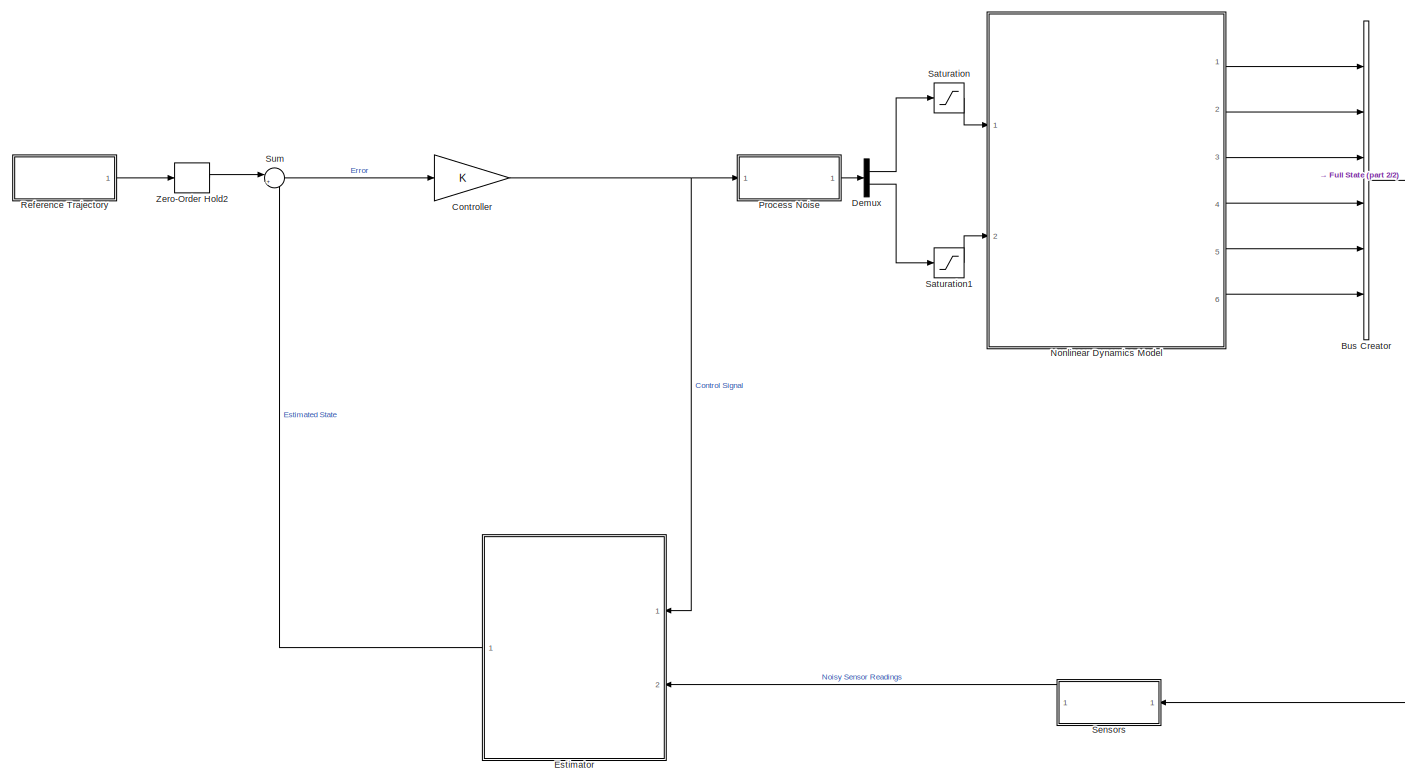
[diagram: root canvas - part 1/2, most of the canvas]
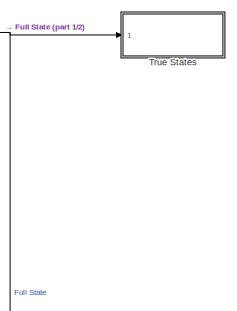
[diagram: root canvas - part 2/2, middle right region]
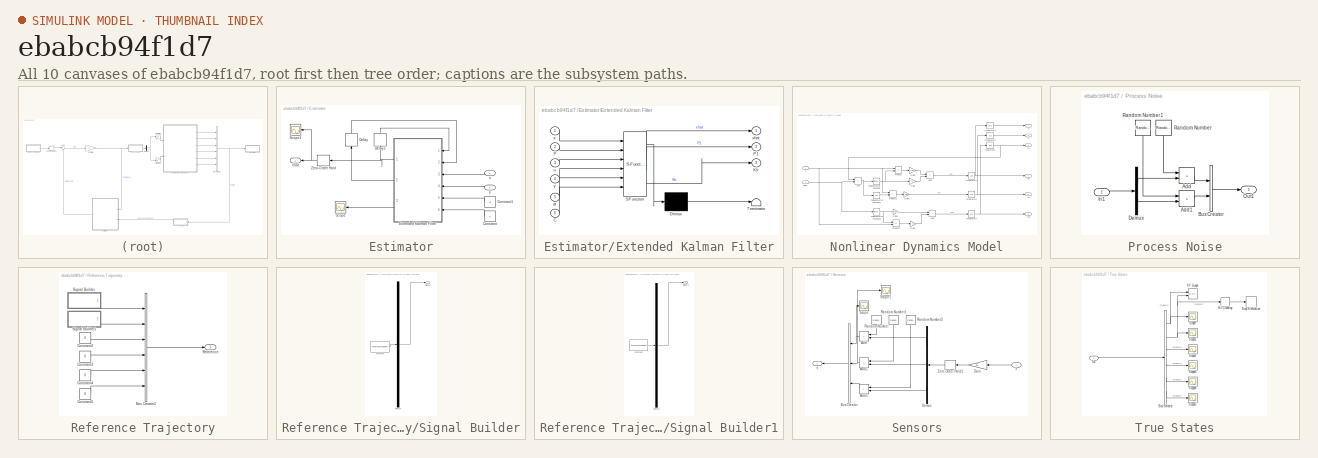
[diagram: thumbnail index - all 10 canvases of the model, root first then tree order]
MODEL slx_ebabcb94f1d7
KIND model
CONFIG AbsTol = auto
CONFIG EnableMultiTasking = off
CONFIG FixedStep = auto
CONFIG MaxStep = auto
CONFIG MinStep = auto
CONFIG RelTol = 1e-3
CONFIG SampleTimeConstraint = Unconstrained
CONFIG SolverName = VariableStepAuto
CONFIG StartTime = 0.0
CONFIG StopTime = 60
BLOCK [BusCreator] Bus Creator
  DisplayOption = bar
  InheritFromInputs = on
  Inputs = 6
  Ports = [6, 1]
BLOCK [Gain] Controller
  Gain = K
  Multiplication = Matrix(K*u) (u vector)
BLOCK [Demux] Demux
  Outputs = 2
  Ports = [1, 2]
BLOCK [SubSystem] Estimator
  NameLocation = top
  Ports = [2, 1]
  RequestExecContextInheritance = off
BLOCK [Constant] Estimator/Constant
  NameLocation = top
  Value = C
BLOCK [Constant] Estimator/Constant1
  NameLocation = top
  Value = dt
BLOCK [Delay] Estimator/Delay
  DelayLength = 1
  InitialCondition = 0
  InputPortMap = u0
  NameLocation = left
  Ports = [1, 1]
  SampleTime = dt
BLOCK [Delay] Estimator/Delay1
  DelayLength = 1
  InitialCondition = 0
  InputPortMap = u0
  NameLocation = left
  Ports = [1, 1]
  SampleTime = dt
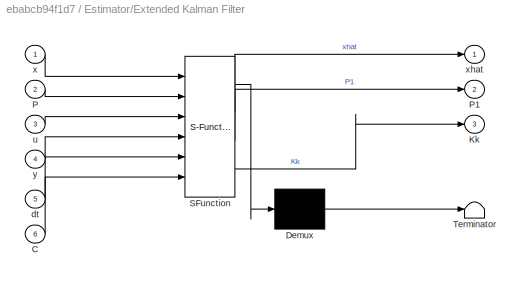
BLOCK [SubSystem] Estimator/Extended Kalman Filter
  ErrorFcn = Stateflow.Translate.translate
  NameLocation = top
  PermitHierarchicalResolution = ExplicitOnly
  Ports = [6, 3]
  RequestExecContextInheritance = off
  SFBlockType = MATLAB Function
  TreatAsAtomicUnit = on
BLOCK [Demux] Estimator/Extended Kalman Filter/ Demux 
  Outputs = 1
  Ports = [1, 1]
BLOCK [S-Function] Estimator/Extended Kalman Filter/ SFunction 
  EnableBusSupport = on
  FunctionName = sf_sfun
  PortCounts = [6 4]
  Ports = [6, 4]
  SFcnIsStateOwnerBlock = off
  SFunctionDeploymentMode = off
  Tag = Stateflow S-Function 2
BLOCK [Terminator] Estimator/Extended Kalman Filter/ Terminator 
BLOCK [Inport] Estimator/Extended Kalman Filter/C
  Port = 6
BLOCK [Outport] Estimator/Extended Kalman Filter/Kk
  Port = 3
BLOCK [Inport] Estimator/Extended Kalman Filter/P
  Port = 2
BLOCK [Outport] Estimator/Extended Kalman Filter/P1
  Port = 2
BLOCK [Inport] Estimator/Extended Kalman Filter/dt
  Port = 5
BLOCK [Inport] Estimator/Extended Kalman Filter/u
  Port = 3
BLOCK [Inport] Estimator/Extended Kalman Filter/x
BLOCK [Outport] Estimator/Extended Kalman Filter/xhat
BLOCK [Inport] Estimator/Extended Kalman Filter/y
  Port = 4
BLOCK [Scope] Estimator/Scope
  Floating = off
  NameLocation = top
  NumInputPorts = 1
  Ports = [1]
  ScopeSpecificationString = Simulink.scopes.TimeScopeBlockCfg('CurrentConfiguration', extmgr.ConfigurationSet(extmgr.Configuration('Core','General UI',true),extmgr.Configuration('Core','Source UI',true),extmgr.Configuration('Sources','WiredSimulink',true,'DataLoggingVariableName','Kk','DataLogging',true,'DataLoggingSaveFormat','Structure'),extmgr.Configuration('Visuals','Time Domain',true,'SerializedDisplays',{struct('MinYLi...<+1433ch>
BLOCK [Scope] Estimator/Scope1
  Floating = off
  NameLocation = top
  NumInputPorts = 1
  Ports = [1]
  ScopeSpecificationString = Simulink.scopes.TimeScopeBlockCfg('CurrentConfiguration', extmgr.ConfigurationSet(extmgr.Configuration('Core','General UI',true),extmgr.Configuration('Core','Source UI',true),extmgr.Configuration('Sources','WiredSimulink',true,'DataLoggingVariableName','x_est','DataLogging',true,'DataLoggingSaveFormat','Array'),extmgr.Configuration('Visuals','Time Domain',true,'SerializedDisplays',{struct('MinYLim...<+1551ch>
BLOCK [ZeroOrderHold] Estimator/Zero-Order Hold
  NameLocation = top
  SampleTime = dt
BLOCK [Inport] Estimator/u
  NameLocation = top
BLOCK [Outport] Estimator/xhat
  NameLocation = top
BLOCK [Inport] Estimator/y
  NameLocation = top
  Port = 2
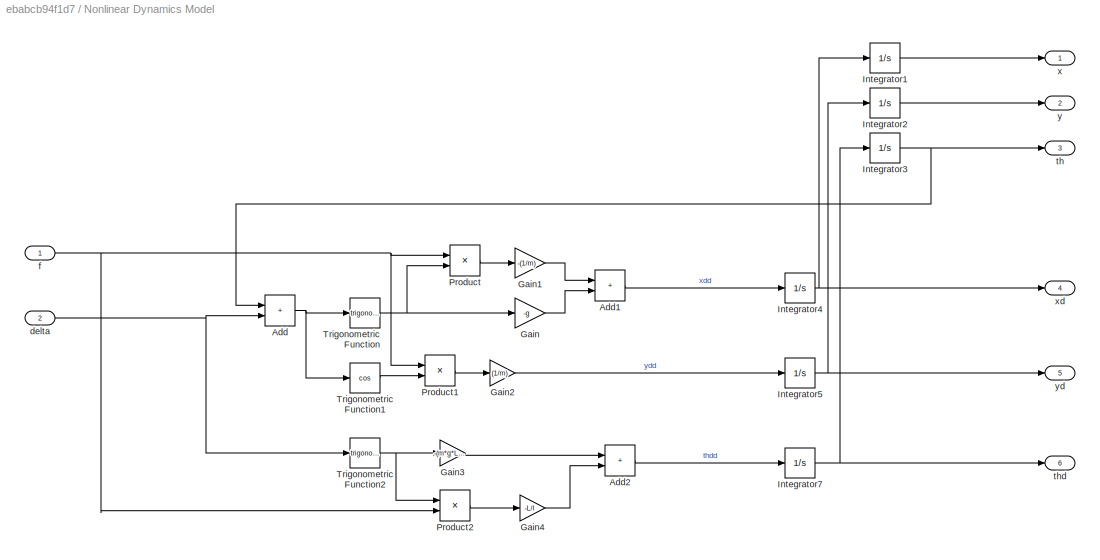
BLOCK [SubSystem] Nonlinear Dynamics Model
  Ports = [2, 6]
  RequestExecContextInheritance = off
BLOCK [Sum] Nonlinear Dynamics Model/Add
  IconShape = rectangular
  Ports = [2, 1]
BLOCK [Sum] Nonlinear Dynamics Model/Add1
  IconShape = rectangular
  Ports = [2, 1]
BLOCK [Sum] Nonlinear Dynamics Model/Add2
  IconShape = rectangular
  Ports = [2, 1]
BLOCK [Gain] Nonlinear Dynamics Model/Gain
  Gain = -g
BLOCK [Gain] Nonlinear Dynamics Model/Gain1
  Gain = -(1/m)
BLOCK [Gain] Nonlinear Dynamics Model/Gain2
  Gain = (1/m)
BLOCK [Gain] Nonlinear Dynamics Model/Gain3
  Gain = -(m*g*L)/I
BLOCK [Gain] Nonlinear Dynamics Model/Gain4
  Gain = -L/I
BLOCK [Integrator] Nonlinear Dynamics Model/Integrator1
  Ports = [1, 1]
BLOCK [Integrator] Nonlinear Dynamics Model/Integrator2
  Ports = [1, 1]
BLOCK [Integrator] Nonlinear Dynamics Model/Integrator3
  Ports = [1, 1]
BLOCK [Integrator] Nonlinear Dynamics Model/Integrator4
  Ports = [1, 1]
BLOCK [Integrator] Nonlinear Dynamics Model/Integrator5
  Ports = [1, 1]
BLOCK [Integrator] Nonlinear Dynamics Model/Integrator7
  Ports = [1, 1]
BLOCK [Product] Nonlinear Dynamics Model/Product
  Ports = [2, 1]
BLOCK [Product] Nonlinear Dynamics Model/Product1
  Ports = [2, 1]
BLOCK [Product] Nonlinear Dynamics Model/Product2
  Ports = [2, 1]
BLOCK [Trigonometry] Nonlinear Dynamics Model/Trigonometric Function
  Ports = [1, 1]
BLOCK [Trigonometry] Nonlinear Dynamics Model/Trigonometric Function1
  Operator = cos
  Ports = [1, 1]
BLOCK [Trigonometry] Nonlinear Dynamics Model/Trigonometric Function2
  Ports = [1, 1]
BLOCK [Inport] Nonlinear Dynamics Model/delta
  Port = 2
BLOCK [Inport] Nonlinear Dynamics Model/f
BLOCK [Outport] Nonlinear Dynamics Model/th
  Port = 3
BLOCK [Outport] Nonlinear Dynamics Model/thd
  Port = 6
BLOCK [Outport] Nonlinear Dynamics Model/x
BLOCK [Outport] Nonlinear Dynamics Model/xd
  Port = 4
BLOCK [Outport] Nonlinear Dynamics Model/y
  Port = 2
BLOCK [Outport] Nonlinear Dynamics Model/yd
  Port = 5
BLOCK [SubSystem] Process Noise
  Ports = [1, 1]
  RequestExecContextInheritance = off
BLOCK [Sum] Process Noise/Add
  IconShape = rectangular
  Ports = [2, 1]
BLOCK [Sum] Process Noise/Add1
  IconShape = rectangular
  Ports = [2, 1]
BLOCK [BusCreator] Process Noise/Bus Creator
  DisplayOption = bar
  InheritFromInputs = on
  Inputs = 2
  Ports = [2, 1]
BLOCK [Demux] Process Noise/Demux
  Outputs = 2
  Ports = [1, 2]
BLOCK [Inport] Process Noise/In1
BLOCK [Outport] Process Noise/Out1
BLOCK [RandomNumber] Process Noise/Random Number
  NameLocation = left
  SampleTime = 0.1
BLOCK [RandomNumber] Process Noise/Random Number1
  NameLocation = left
  SampleTime = 0.1
  Variance = 0.0001
BLOCK [SubSystem] Reference Trajectory
  Ports = [0, 1]
  RequestExecContextInheritance = off
BLOCK [BusCreator] Reference Trajectory/Bus Creator1
  DisplayOption = bar
  InheritFromInputs = on
  Inputs = 6
  Ports = [6, 1]
BLOCK [Constant] Reference Trajectory/Constant2
  Value = 0
BLOCK [Constant] Reference Trajectory/Constant3
  Value = 0
BLOCK [Constant] Reference Trajectory/Constant4
  Value = 0
BLOCK [Constant] Reference Trajectory/Constant5
  Value = 0
BLOCK [Outport] Reference Trajectory/Reference
BLOCK [SubSystem] Reference Trajectory/Signal Builder
  ClipboardFcn = sigbuilder_block('clipboard');
  CloseFcn = sigbuilder_block('close');
  ContinueFcn = sigbuilder_block('continue');
  CopyFcn = sigbuilder_block('copy');
  DeleteFcn = sigbuilder_block('delete');
  LoadFcn = sigbuilder_block('load');
  MaskHideContents = on
  ModelCloseFcn = sigbuilder_block('modelClose');
  NameChangeFcn = sigbuilder_block('namechange');
  OpenFcn = sigbuilder_block('open',[608 259 753 349 ]);
  PauseFcn = sigbuilder_block('pause');
  Ports = [0, 1]
  PreSaveFcn = sigbuilder_block('preSave');
  RequestExecContextInheritance = off
  StartFcn = sigbuilder_block('start');
  StopFcn = sigbuilder_block('stop');
  Tag = STV Subsys
BLOCK [Demux] Reference Trajectory/Signal Builder/Demux
  DisplayOption = none
  Outputs = 1
  Ports = [1, 1]
  Tag = STV Demux
BLOCK [FromWorkspace] Reference Trajectory/Signal Builder/FromWs
  Tag = STV FromWs
  VariableName = tuvar
BLOCK [Outport] Reference Trajectory/Signal Builder/Signal 1
  Tag = STV Outport
BLOCK [SubSystem] Reference Trajectory/Signal Builder1
  ClipboardFcn = sigbuilder_block('clipboard');
  CloseFcn = sigbuilder_block('close');
  ContinueFcn = sigbuilder_block('continue');
  CopyFcn = sigbuilder_block('copy');
  DeleteFcn = sigbuilder_block('delete');
  LoadFcn = sigbuilder_block('load');
  MaskHideContents = on
  ModelCloseFcn = sigbuilder_block('modelClose');
  NameChangeFcn = sigbuilder_block('namechange');
  OpenFcn = sigbuilder_block('open',[636 192 753 400 ]);
  PauseFcn = sigbuilder_block('pause');
  Ports = [0, 1]
  PreSaveFcn = sigbuilder_block('preSave');
  RequestExecContextInheritance = off
  StartFcn = sigbuilder_block('start');
  StopFcn = sigbuilder_block('stop');
  Tag = STV Subsys
BLOCK [Demux] Reference Trajectory/Signal Builder1/Demux
  DisplayOption = none
  Outputs = 1
  Ports = [1, 1]
  Tag = STV Demux
BLOCK [FromWorkspace] Reference Trajectory/Signal Builder1/FromWs
  Tag = STV FromWs
  VariableName = tuvar
BLOCK [Outport] Reference Trajectory/Signal Builder1/Signal 1
  Tag = STV Outport
BLOCK [Saturate] Saturation
  LowerLimit = -m*g
  UpperLimit = m*g
BLOCK [Saturate] Saturation1
  LowerLimit = -0.2
  UpperLimit = 0.2
BLOCK [SubSystem] Sensors
  NameLocation = top
  Ports = [1, 1]
  RequestExecContextInheritance = off
BLOCK [Sum] Sensors/Add
  IconShape = rectangular
  NameLocation = top
  Ports = [2, 1]
BLOCK [Sum] Sensors/Add1
  IconShape = rectangular
  NameLocation = top
  Ports = [2, 1]
BLOCK [Sum] Sensors/Add5
  IconShape = rectangular
  NameLocation = top
  Ports = [2, 1]
BLOCK [BusCreator] Sensors/Bus Creator
  DisplayOption = bar
  InheritFromInputs = on
  Inputs = 3
  NameLocation = top
  Ports = [3, 1]
BLOCK [Demux] Sensors/Demux
  NameLocation = top
  Outputs = 3
  Ports = [1, 3]
BLOCK [Gain] Sensors/Gain
  Gain = C
  Multiplication = Matrix(K*u) (u vector)
  NameLocation = top
BLOCK [RandomNumber] Sensors/Random Number
  NameLocation = left
  SampleTime = dt
BLOCK [RandomNumber] Sensors/Random Number1
  NameLocation = left
  SampleTime = dt
  Variance = 0.01
BLOCK [RandomNumber] Sensors/Random Number2
  NameLocation = left
  SampleTime = dt
  Variance = 0.0001
BLOCK [Scope] Sensors/Scope
  Floating = off
  NumInputPorts = 1
  Ports = [1]
  ScopeSpecificationString = Simulink.scopes.TimeScopeBlockCfg('CurrentConfiguration', extmgr.ConfigurationSet(extmgr.Configuration('Core','General UI',true),extmgr.Configuration('Core','Source UI',true),extmgr.Configuration('Sources','WiredSimulink',true,'DataLoggingVariableName','x_sensor','DataLogging',true,'DataLoggingSaveFormat','Array'),extmgr.Configuration('Visuals','Time Domain',true,'SerializedDisplays',{struct('MinY...<+1415ch>
BLOCK [Scope] Sensors/Scope1
  Floating = off
  NumInputPorts = 1
  Ports = [1]
  ScopeSpecificationString = Simulink.scopes.TimeScopeBlockCfg('CurrentConfiguration', extmgr.ConfigurationSet(extmgr.Configuration('Core','General UI',true),extmgr.Configuration('Core','Source UI',true),extmgr.Configuration('Sources','WiredSimulink',true,'DataLoggingVariableName','y_sensor','DataLogging',true,'DataLoggingSaveFormat','Array'),extmgr.Configuration('Visuals','Time Domain',true,'SerializedDisplays',{struct('MinY...<+1416ch>
BLOCK [ZeroOrderHold] Sensors/Zero-Order Hold1
  NameLocation = top
  SampleTime = 0.01
BLOCK [Inport] Sensors/x
  NameLocation = top
BLOCK [Outport] Sensors/y
  NameLocation = top
BLOCK [Sum] Sum
  Inputs = |+-
  Ports = [2, 1]
BLOCK [SubSystem] True States
  Ports = [1]
  RequestExecContextInheritance = off
BLOCK [BusSelector] True States/Bus Selector
  OutputSignals = signal1,signal2,signal3,signal4,signal5,signal6
  Ports = [1, 6]
BLOCK [HitCross] True States/Hit Crossing
  HitCrossingDirection = falling
  Ports = [1, 1]
BLOCK [Inport] True States/In1
BLOCK [Scope] True States/Scope
  Floating = off
  NumInputPorts = 1
  Ports = [1]
  ScopeSpecificationString = Simulink.scopes.TimeScopeBlockCfg('CurrentConfiguration', extmgr.ConfigurationSet(extmgr.Configuration('Core','General UI',true),extmgr.Configuration('Core','Source UI',true),extmgr.Configuration('Sources','WiredSimulink',true,'DataLogging',true,'DataLoggingVariableName','x_truth','DataLoggingSaveFormat','Array'),extmgr.Configuration('Visuals','Time Domain',true,'SerializedDisplays',{struct('MinYL...<+1445ch>
BLOCK [Scope] True States/Scope1
  Floating = off
  NumInputPorts = 1
  Ports = [1]
  ScopeSpecificationString = Simulink.scopes.TimeScopeBlockCfg('CurrentConfiguration', extmgr.ConfigurationSet(extmgr.Configuration('Core','General UI',true),extmgr.Configuration('Core','Source UI',true),extmgr.Configuration('Sources','WiredSimulink',true,'DataLoggingVariableName','y_truth','DataLogging',true,'DataLoggingSaveFormat','Array'),extmgr.Configuration('Visuals','Time Domain',true,'SerializedDisplays',{struct('MinYL...<+1420ch>
BLOCK [Scope] True States/Scope2
  Floating = off
  NumInputPorts = 1
  Ports = [1]
  ScopeSpecificationString = Simulink.scopes.TimeScopeBlockCfg('CurrentConfiguration', extmgr.ConfigurationSet(extmgr.Configuration('Core','General UI',true),extmgr.Configuration('Core','Source UI',true),extmgr.Configuration('Sources','WiredSimulink',true,'DataLoggingVariableName','ScopeData2'),extmgr.Configuration('Visuals','Time Domain',true,'SerializedDisplays',{struct('MinYLimReal','-0.24956','MaxYLimReal','0.28021','YLab...<+1395ch>
BLOCK [Scope] True States/Scope3
  Floating = off
  NumInputPorts = 1
  Ports = [1]
  ScopeSpecificationString = Simulink.scopes.TimeScopeBlockCfg('CurrentConfiguration', extmgr.ConfigurationSet(extmgr.Configuration('Core','General UI',true),extmgr.Configuration('Core','Source UI',true),extmgr.Configuration('Sources','WiredSimulink',true,'DataLoggingVariableName','ScopeData3'),extmgr.Configuration('Visuals','Time Domain',true,'SerializedDisplays',{struct('MinYLimReal','-0.88136','MaxYLimReal','3.15049','YLab...<+1397ch>
BLOCK [Scope] True States/Scope4
  Floating = off
  NumInputPorts = 1
  Ports = [1]
  ScopeSpecificationString = Simulink.scopes.TimeScopeBlockCfg('CurrentConfiguration', extmgr.ConfigurationSet(extmgr.Configuration('Core','General UI',true),extmgr.Configuration('Core','Source UI',true),extmgr.Configuration('Sources','WiredSimulink',true,'DataLoggingVariableName','ScopeData4'),extmgr.Configuration('Visuals','Time Domain',true,'SerializedDisplays',{struct('MinYLimReal','-3.00239','MaxYLimReal','2.8862','YLabe...<+1393ch>
BLOCK [Scope] True States/Scope5
  Floating = off
  NumInputPorts = 1
  Ports = [1]
  ScopeSpecificationString = Simulink.scopes.TimeScopeBlockCfg('CurrentConfiguration', extmgr.ConfigurationSet(extmgr.Configuration('Core','General UI',true),extmgr.Configuration('Core','Source UI',true),extmgr.Configuration('Sources','WiredSimulink',true,'DataLoggingVariableName','ScopeData5'),extmgr.Configuration('Visuals','Time Domain',true,'SerializedDisplays',{struct('MinYLimReal','-1.67103','MaxYLimReal','1.2938','YLabe...<+1395ch>
BLOCK [Stop] True States/Stop Simulation
  Commented = on
BLOCK [Reference] True States/XY Graph  REF=simulink/Sinks/XY Graph
  Ports = [2]
  SourceBlock = simulink/Sinks/XY Graph
  SourceProductBaseCode = SL
  SourceType = XY scope.
BLOCK [ZeroOrderHold] Zero-Order Hold2
  SampleTime = 0.01
NET Bus Creator:1 -> Sensors:1, True States:1
NET Controller:1 -> Estimator:1, Process Noise:1
LINE Demux:1 -> Saturation:1
LINE Demux:2 -> Saturation1:1
LINE Estimator/Constant1:1 -> Estimator/Extended Kalman Filter:5
LINE Estimator/Constant:1 -> Estimator/Extended Kalman Filter:6
LINE Estimator/Delay1:1 -> Estimator/Extended Kalman Filter:1
LINE Estimator/Delay:1 -> Estimator/Extended Kalman Filter:2
NET Estimator/Extended Kalman Filter:1 -> Estimator/Delay1:1, Estimator/Zero-Order Hold:1
LINE Estimator/Extended Kalman Filter:2 -> Estimator/Delay:1
LINE Estimator/Extended Kalman Filter:3 -> Estimator/Scope:1
NET Estimator/Zero-Order Hold:1 -> Estimator/Scope1:1, Estimator/xhat:1
LINE Estimator/u:1 -> Estimator/Extended Kalman Filter:3
LINE Estimator/y:1 -> Estimator/Extended Kalman Filter:4
LINE Estimator:1 -> Sum:2
LINE Nonlinear Dynamics Model/Add1:1 -> Nonlinear Dynamics Model/Integrator4:1
LINE Nonlinear Dynamics Model/Add2:1 -> Nonlinear Dynamics Model/Integrator7:1
NET Nonlinear Dynamics Model/Add:1 -> Nonlinear Dynamics Model/Trigonometric Function1:1, Nonlinear Dynamics Model/Trigonometric Function:1
LINE Nonlinear Dynamics Model/Gain1:1 -> Nonlinear Dynamics Model/Add1:1
LINE Nonlinear Dynamics Model/Gain2:1 -> Nonlinear Dynamics Model/Integrator5:1
LINE Nonlinear Dynamics Model/Gain3:1 -> Nonlinear Dynamics Model/Add2:1
LINE Nonlinear Dynamics Model/Gain4:1 -> Nonlinear Dynamics Model/Add2:2
LINE Nonlinear Dynamics Model/Gain:1 -> Nonlinear Dynamics Model/Add1:2
LINE Nonlinear Dynamics Model/Integrator1:1 -> Nonlinear Dynamics Model/x:1
LINE Nonlinear Dynamics Model/Integrator2:1 -> Nonlinear Dynamics Model/y:1
NET Nonlinear Dynamics Model/Integrator3:1 -> Nonlinear Dynamics Model/Add:1, Nonlinear Dynamics Model/th:1
NET Nonlinear Dynamics Model/Integrator4:1 -> Nonlinear Dynamics Model/Integrator1:1, Nonlinear Dynamics Model/xd:1
NET Nonlinear Dynamics Model/Integrator5:1 -> Nonlinear Dynamics Model/Integrator2:1, Nonlinear Dynamics Model/yd:1
NET Nonlinear Dynamics Model/Integrator7:1 -> Nonlinear Dynamics Model/Integrator3:1, Nonlinear Dynamics Model/thd:1
LINE Nonlinear Dynamics Model/Product1:1 -> Nonlinear Dynamics Model/Gain2:1
LINE Nonlinear Dynamics Model/Product2:1 -> Nonlinear Dynamics Model/Gain4:1
LINE Nonlinear Dynamics Model/Product:1 -> Nonlinear Dynamics Model/Gain1:1
LINE Nonlinear Dynamics Model/Trigonometric Function1:1 -> Nonlinear Dynamics Model/Product1:2
NET Nonlinear Dynamics Model/Trigonometric Function2:1 -> Nonlinear Dynamics Model/Gain3:1, Nonlinear Dynamics Model/Product2:1
NET Nonlinear Dynamics Model/Trigonometric Function:1 -> Nonlinear Dynamics Model/Gain:1, Nonlinear Dynamics Model/Product:2
NET Nonlinear Dynamics Model/delta:1 -> Nonlinear Dynamics Model/Add:2, Nonlinear Dynamics Model/Trigonometric Function2:1
NET Nonlinear Dynamics Model/f:1 -> Nonlinear Dynamics Model/Product1:1, Nonlinear Dynamics Model/Product2:2, Nonlinear Dynamics Model/Product:1
LINE Nonlinear Dynamics Model:1 -> Bus Creator:1
LINE Nonlinear Dynamics Model:2 -> Bus Creator:2
LINE Nonlinear Dynamics Model:3 -> Bus Creator:3
LINE Nonlinear Dynamics Model:4 -> Bus Creator:4
LINE Nonlinear Dynamics Model:5 -> Bus Creator:5
LINE Nonlinear Dynamics Model:6 -> Bus Creator:6
LINE Process Noise/Add1:1 -> Process Noise/Bus Creator:2
LINE Process Noise/Add:1 -> Process Noise/Bus Creator:1
LINE Process Noise/Bus Creator:1 -> Process Noise/Out1:1
LINE Process Noise/Demux:1 -> Process Noise/Add:2
LINE Process Noise/Demux:2 -> Process Noise/Add1:2
LINE Process Noise/In1:1 -> Process Noise/Demux:1
LINE Process Noise/Random Number1:1 -> Process Noise/Add1:1
LINE Process Noise/Random Number:1 -> Process Noise/Add:1
LINE Process Noise:1 -> Demux:1
LINE Reference Trajectory/Bus Creator1:1 -> Reference Trajectory/Reference:1
LINE Reference Trajectory/Constant2:1 -> Reference Trajectory/Bus Creator1:3
LINE Reference Trajectory/Constant3:1 -> Reference Trajectory/Bus Creator1:4
LINE Reference Trajectory/Constant4:1 -> Reference Trajectory/Bus Creator1:5
LINE Reference Trajectory/Constant5:1 -> Reference Trajectory/Bus Creator1:6
LINE Reference Trajectory/Signal Builder1:1 -> Reference Trajectory/Bus Creator1:2
LINE Reference Trajectory/Signal Builder:1 -> Reference Trajectory/Bus Creator1:1
LINE Reference Trajectory:1 -> Zero-Order Hold2:1
LINE Saturation1:1 -> Nonlinear Dynamics Model:2
LINE Saturation:1 -> Nonlinear Dynamics Model:1
NET Sensors/Add1:1 -> Sensors/Bus Creator:2, Sensors/Scope1:1
LINE Sensors/Add5:1 -> Sensors/Bus Creator:3
NET Sensors/Add:1 -> Sensors/Bus Creator:1, Sensors/Scope:1
LINE Sensors/Bus Creator:1 -> Sensors/y:1
LINE Sensors/Demux:1 -> Sensors/Add:2
LINE Sensors/Demux:2 -> Sensors/Add1:2
LINE Sensors/Demux:3 -> Sensors/Add5:2
LINE Sensors/Gain:1 -> Sensors/Zero-Order Hold1:1
LINE Sensors/Random Number1:1 -> Sensors/Add1:1
LINE Sensors/Random Number2:1 -> Sensors/Add5:1
LINE Sensors/Random Number:1 -> Sensors/Add:1
LINE Sensors/Zero-Order Hold1:1 -> Sensors/Demux:1
LINE Sensors/x:1 -> Sensors/Gain:1
LINE Sensors:1 -> Estimator:2
LINE Sum:1 -> Controller:1
NET True States/Bus Selector:1 -> True States/Scope:1, True States/XY Graph:1
NET True States/Bus Selector:2 -> True States/Hit Crossing:1, True States/Scope1:1, True States/XY Graph:2
LINE True States/Bus Selector:3 -> True States/Scope2:1
LINE True States/Bus Selector:4 -> True States/Scope3:1
LINE True States/Bus Selector:5 -> True States/Scope4:1
LINE True States/Bus Selector:6 -> True States/Scope5:1
LINE True States/Hit Crossing:1 -> True States/Stop Simulation:1
LINE True States/In1:1 -> True States/Bus Selector:1
LINE Zero-Order Hold2:1 -> Sum:1
note: NET lines group one-source signal fan-out (src -> all destinations, sorted); 1:1 wires keep LINE
CHART Estimator/Extended Kalman Filter states=1 transitions=1
  STATE_LABEL 'eML_blk_kernel()'
  STATE_LABEL 'SCRIPT:\nfunction [xhat,P1,Kk] = EKF(x,P,u,y,dt,C)\n    f=u(1);\n    delta=u(2);\n    m=1;\n    g=9.8;\n    L=0.2;\n    I=0.002;\n\n    %Process Noise Covariance\n    Q=[0 0 0 0 0 0;\n       0 0 0 0 0 0;\n       0 0 0 0 0 0;\n       0 0 0 0.0096 0 0.4802;\n       0 0 0 0 1 0;\n       0 0 0 0.4802 0 24.0100];\n    \n    %Sensor Noise Covariance\n    R=diag([0.9 0.01 0.005]);\n    \n    if size(x)==1\n        x0=zeros(6...<+841ch>'
CHART  states=0 transitions=0
